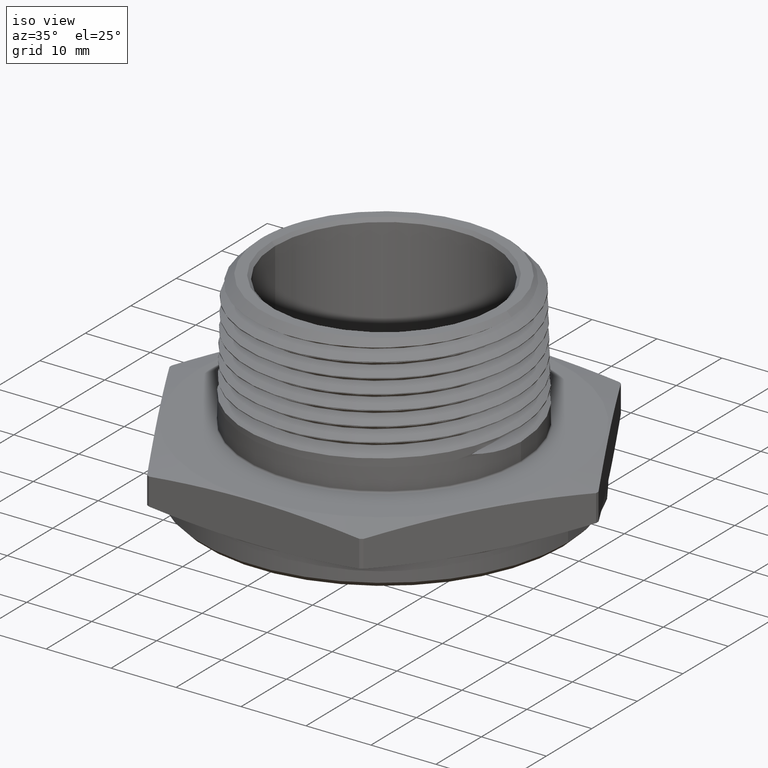
[diagram: clean part render]
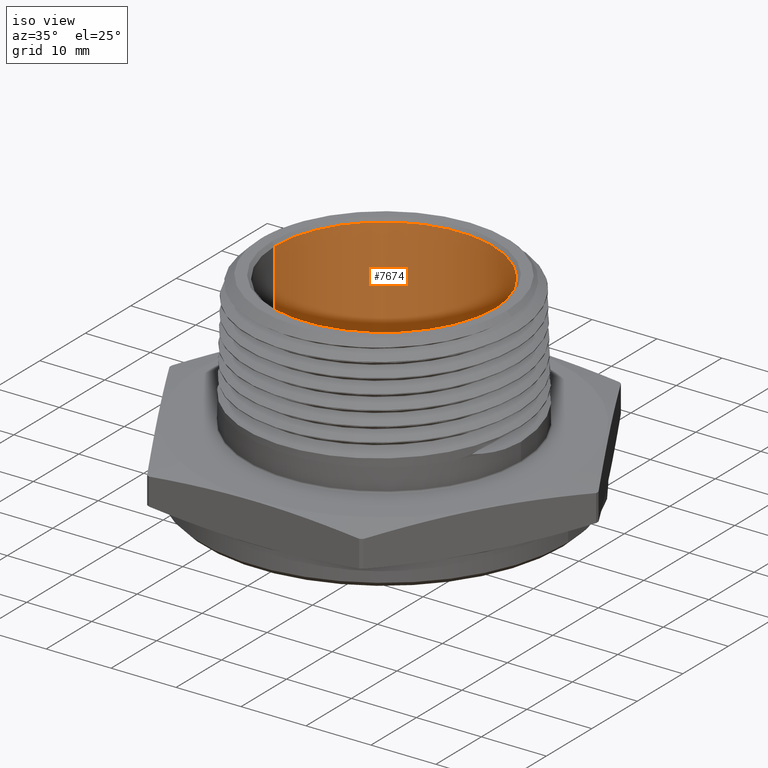
[diagram: same view with one face highlighted and labeled with its STEP entity id]
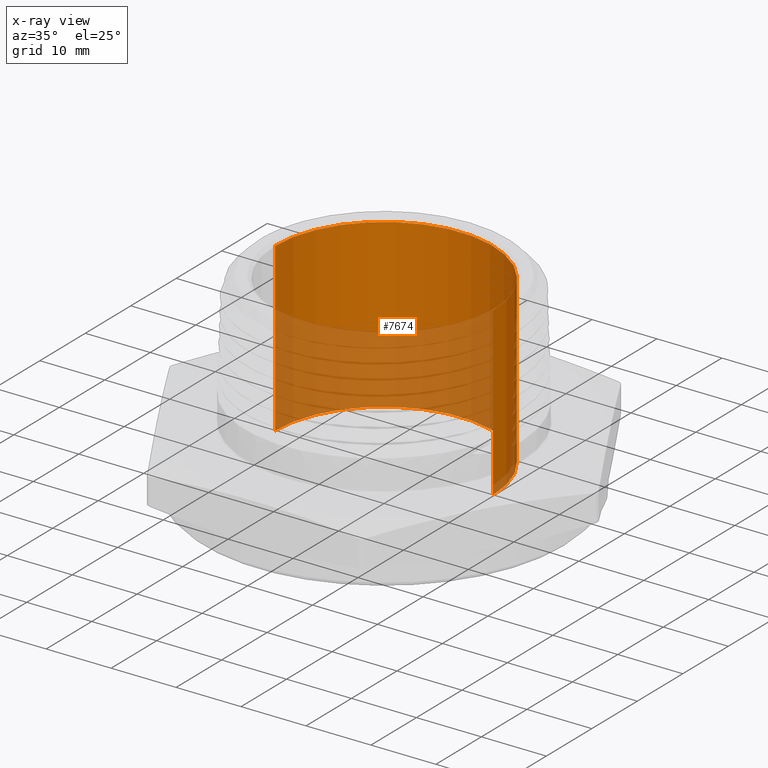
[diagram: x-ray of the same camera — body ghosted, the highlighted face saturated]
A machine part, iso view. The second image highlights one B-rep face of the part: STEP entity #7674.
The next image is the same camera in x-ray: the body ghosted, the highlighted face saturated — about 44% of this face is hidden behind the body in this view.
In plain terms, the highlighted cylindrical surface (partial cylindrical patch) has radius 16.764 mm, axis along (-0, -0, 1).
Its self-contained STEP definition (entity closure, byte-faithful):
#46 = EDGE_CURVE ( 'NONE', #276, #272, #542, .T. ) ;
#47 = EDGE_CURVE ( 'NONE', #294, #285, #544, .T. ) ;
#155 = EDGE_CURVE ( 'NONE', #294, #276, #3245, .T. ) ;
#158 = EDGE_CURVE ( 'NONE', #285, #272, #3250, .T. ) ;
#179 = AXIS2_PLACEMENT_3D ( 'NONE', #5593, #5594, #5595 ) ;
#180 = AXIS2_PLACEMENT_3D ( 'NONE', #5596, #5597, #5598 ) ;
#272 = VERTEX_POINT ( 'NONE', #5689 ) ;
#276 = VERTEX_POINT ( 'NONE', #1073 ) ;
#285 = VERTEX_POINT ( 'NONE', #5717 ) ;
#294 = VERTEX_POINT ( 'NONE', #5726 ) ;
#344 = ORIENTED_EDGE ( 'NONE', *, *, #158, .F. ) ;
#345 = ORIENTED_EDGE ( 'NONE', *, *, #47, .F. ) ;
#346 = ORIENTED_EDGE ( 'NONE', *, *, #155, .T. ) ;
#347 = ORIENTED_EDGE ( 'NONE', *, *, #46, .T. ) ;
#393 = EDGE_LOOP ( 'NONE', ( #344, #345, #346, #347 ) ) ;
#542 = CIRCLE ( 'NONE', #179, 0.6599999999999999200 ) ;
#544 = CIRCLE ( 'NONE', #180, 0.6600000000000000300 ) ;
#985 = DIRECTION ( 'NONE',  ( -0.0000000000000000000, -0.0000000000000000000, 1.000000000000000000 ) ) ;
#989 = CARTESIAN_POINT ( 'NONE',  ( 0.6600000000000000300, 0.0000000000000000000, -0.1499999999999999900 ) ) ;
#990 = CARTESIAN_POINT ( 'NONE',  ( -0.6600000000000000300, 8.082668874372531800E-017, -0.1499999999999999900 ) ) ;
#991 = DIRECTION ( 'NONE',  ( -0.0000000000000000000, -0.0000000000000000000, 1.000000000000000000 ) ) ;
#1073 = CARTESIAN_POINT ( 'NONE',  ( 0.6599999999999999200, 0.0000000000000000000, 1.030000000000000000 ) ) ;
#3245 = LINE ( 'NONE', #989, #3247 ) ;
#3247 = VECTOR ( 'NONE', #985, 39.37007874015748100 ) ;
#3250 = LINE ( 'NONE', #990, #3252 ) ;
#3252 = VECTOR ( 'NONE', #991, 39.37007874015748100 ) ;
#3298 = FACE_OUTER_BOUND ( 'NONE', #393, .T. ) ;
#3333 = CYLINDRICAL_SURFACE ( 'NONE', #7298, 0.6600000000000000300 ) ;
#5593 = CARTESIAN_POINT ( 'NONE',  ( 3.673940397442165500E-018, 0.0000000000000000000, 1.030000000000000000 ) ) ;
#5594 = DIRECTION ( 'NONE',  ( -0.0000000000000000000, -0.0000000000000000000, 1.000000000000000000 ) ) ;
#5595 = DIRECTION ( 'NONE',  ( 1.000000000000000000, 0.0000000000000000000, 0.0000000000000000000 ) ) ;
#5596 = CARTESIAN_POINT ( 'NONE',  ( 3.673940397442165500E-018, 0.0000000000000000000, 0.01748031496062993700 ) ) ;
#5597 = DIRECTION ( 'NONE',  ( -0.0000000000000000000, -0.0000000000000000000, 1.000000000000000000 ) ) ;
#5598 = DIRECTION ( 'NONE',  ( 1.000000000000000000, 0.0000000000000000000, 0.0000000000000000000 ) ) ;
#5689 = CARTESIAN_POINT ( 'NONE',  ( -0.6599999999999999200, 8.082668874372529300E-017, 1.030000000000000000 ) ) ;
#5717 = CARTESIAN_POINT ( 'NONE',  ( -0.6600000000000000300, 8.082668874372531800E-017, 0.01748031496062993700 ) ) ;
#5726 = CARTESIAN_POINT ( 'NONE',  ( 0.6600000000000000300, 0.0000000000000000000, 0.01748031496062993700 ) ) ;
#5914 = DIRECTION ( 'NONE',  ( -0.0000000000000000000, -0.0000000000000000000, 1.000000000000000000 ) ) ;
#5916 = DIRECTION ( 'NONE',  ( 1.000000000000000000, 0.0000000000000000000, 0.0000000000000000000 ) ) ;
#5918 = CARTESIAN_POINT ( 'NONE',  ( 3.673940397442165500E-018, 0.0000000000000000000, -0.1499999999999999900 ) ) ;
#7298 = AXIS2_PLACEMENT_3D ( 'NONE', #5918, #5914, #5916 ) ;
#7674 = ADVANCED_FACE ( 'NONE', ( #3298 ), #3333, .F. ) ;